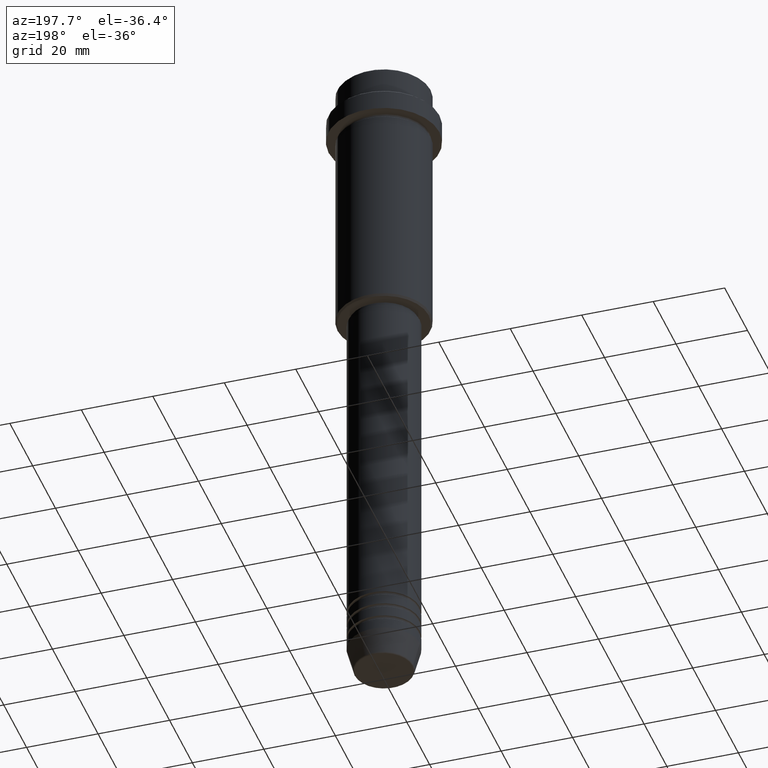
[diagram: clean part render]
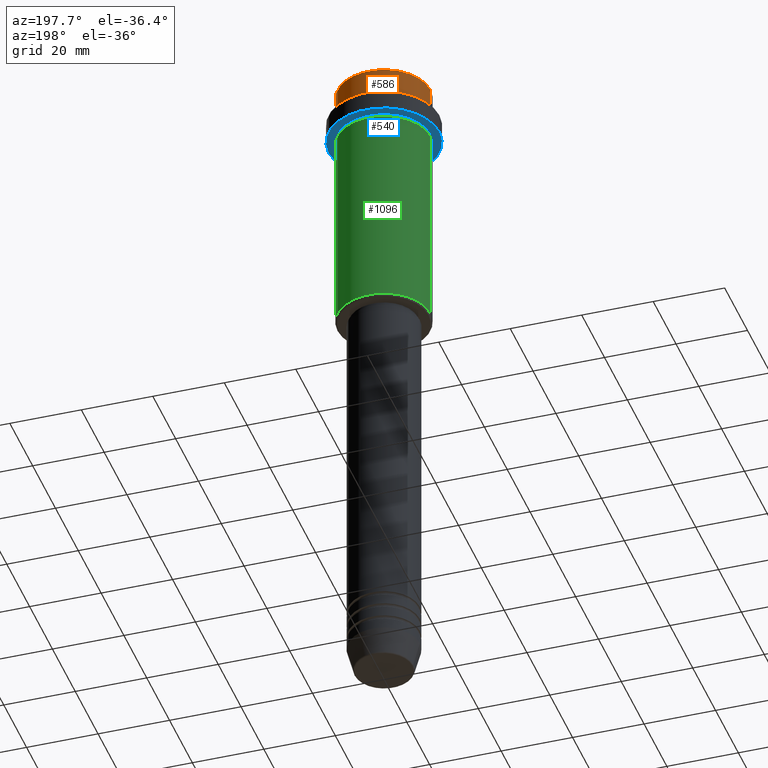
[diagram: same view with three faces highlighted in distinct colors, each labeled with its STEP entity id]
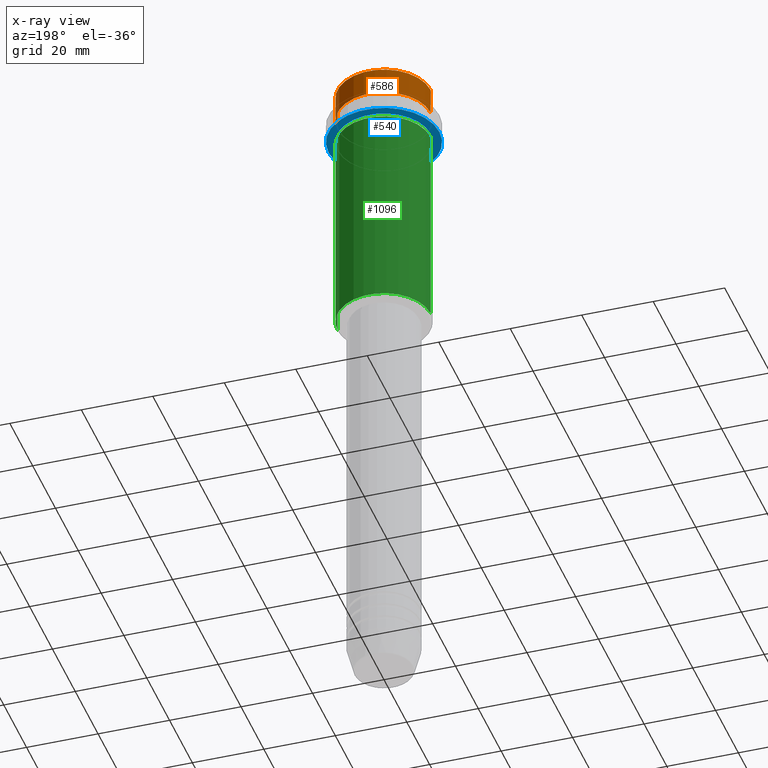
[diagram: x-ray of the same camera — body ghosted, the three highlighted faces saturated]
A machine part, auxiliary view with three faces highlighted in distinct colors.
The next image is the same camera in x-ray (body ghosted, the three faces saturated) — at least one of them is partly hidden behind the body in this view.
Their STEP definitions:

[orange] entity #586 — the highlighted cylindrical surface (partial cylindrical patch) has radius 13 mm, axis along (-0, -0, 1).
#5 = CYLINDRICAL_SURFACE ( 'NONE', #1361, 12.99999999999999822 ) ;
#7 = ORIENTED_EDGE ( 'NONE', *, *, #494, .T. ) ;
#40 = CARTESIAN_POINT ( 'NONE',  ( -12.99999999999999822, 1.592040838891558898E-15, -0.4999999999999761302 ) ) ;
#41 = CARTESIAN_POINT ( 'NONE',  ( 0.000000000000000000, 0.000000000000000000, -7.999999999999998224 ) ) ;
#74 = EDGE_CURVE ( 'NONE', #1091, #378, #710, .T. ) ;
#129 = CIRCLE ( 'NONE', #1316, 12.99999999999999822 ) ;
#149 = VECTOR ( 'NONE', #564, 1000.000000000000000 ) ;
#163 = DIRECTION ( 'NONE',  ( -0.000000000000000000, -0.000000000000000000, 1.000000000000000000 ) ) ;
#210 = DIRECTION ( 'NONE',  ( 1.000000000000000000, 0.000000000000000000, 0.000000000000000000 ) ) ;
#304 = LINE ( 'NONE', #632, #1384 ) ;
#327 = FACE_OUTER_BOUND ( 'NONE', #368, .T. ) ;
#368 = EDGE_LOOP ( 'NONE', ( #733, #1133, #7, #1370 ) ) ;
#378 = VERTEX_POINT ( 'NONE', #881 ) ;
#491 = DIRECTION ( 'NONE',  ( 1.000000000000000000, 0.000000000000000000, 0.000000000000000000 ) ) ;
#494 = EDGE_CURVE ( 'NONE', #875, #680, #129, .T. ) ;
#525 = DIRECTION ( 'NONE',  ( 0.000000000000000000, 0.000000000000000000, -1.000000000000000000 ) ) ;
#564 = DIRECTION ( 'NONE',  ( -0.000000000000000000, -0.000000000000000000, 1.000000000000000000 ) ) ;
#586 = ADVANCED_FACE ( 'NONE', ( #327 ), #5, .T. ) ;
#632 = CARTESIAN_POINT ( 'NONE',  ( -12.99999999999999822, 1.592040838891558898E-15, 0.000000000000000000 ) ) ;
#680 = VERTEX_POINT ( 'NONE', #956 ) ;
#710 = CIRCLE ( 'NONE', #892, 12.99999999999999822 ) ;
#733 = ORIENTED_EDGE ( 'NONE', *, *, #74, .T. ) ;
#756 = DIRECTION ( 'NONE',  ( 1.000000000000000000, 0.000000000000000000, 0.000000000000000000 ) ) ;
#782 = LINE ( 'NONE', #1219, #149 ) ;
#858 = CARTESIAN_POINT ( 'NONE',  ( 12.99999999999999822, 0.000000000000000000, -7.999999999999998224 ) ) ;
#875 = VERTEX_POINT ( 'NONE', #40 ) ;
#881 = CARTESIAN_POINT ( 'NONE',  ( -12.99999999999999822, 1.592040838891558898E-15, -7.999999999999998224 ) ) ;
#886 = DIRECTION ( 'NONE',  ( -0.000000000000000000, -0.000000000000000000, 1.000000000000000000 ) ) ;
#892 = AXIS2_PLACEMENT_3D ( 'NONE', #41, #163, #491 ) ;
#956 = CARTESIAN_POINT ( 'NONE',  ( 12.99999999999999822, 0.000000000000000000, -0.4999999999999761302 ) ) ;
#1068 = EDGE_CURVE ( 'NONE', #378, #875, #304, .T. ) ;
#1091 = VERTEX_POINT ( 'NONE', #858 ) ;
#1094 = CARTESIAN_POINT ( 'NONE',  ( 0.000000000000000000, 0.000000000000000000, -0.4999999999999761302 ) ) ;
#1133 = ORIENTED_EDGE ( 'NONE', *, *, #1068, .T. ) ;
#1198 = CARTESIAN_POINT ( 'NONE',  ( 0.000000000000000000, 0.000000000000000000, 0.000000000000000000 ) ) ;
#1219 = CARTESIAN_POINT ( 'NONE',  ( 12.99999999999999822, 0.000000000000000000, 0.000000000000000000 ) ) ;
#1260 = EDGE_CURVE ( 'NONE', #1091, #680, #782, .T. ) ;
#1316 = AXIS2_PLACEMENT_3D ( 'NONE', #1094, #525, #756 ) ;
#1361 = AXIS2_PLACEMENT_3D ( 'NONE', #1198, #886, #210 ) ;
#1370 = ORIENTED_EDGE ( 'NONE', *, *, #1260, .F. ) ;
#1384 = VECTOR ( 'NONE', #1392, 1000.000000000000000 ) ;
#1392 = DIRECTION ( 'NONE',  ( -0.000000000000000000, -0.000000000000000000, 1.000000000000000000 ) ) ;

[blue] entity #540 — the highlighted planar face has unit normal (0, 0, -1).
#36 = EDGE_CURVE ( 'NONE', #1210, #1222, #272, .T. ) ;
#115 = EDGE_CURVE ( 'NONE', #1323, #781, #508, .T. ) ;
#141 = EDGE_LOOP ( 'NONE', ( #1237, #762 ) ) ;
#220 = AXIS2_PLACEMENT_3D ( 'NONE', #1238, #936, #1151 ) ;
#241 = CARTESIAN_POINT ( 'NONE',  ( -15.50000000000000000, 1.898202538678397557E-15, -15.00000000000000178 ) ) ;
#272 = CIRCLE ( 'NONE', #967, 15.50000000000000000 ) ;
#273 = CARTESIAN_POINT ( 'NONE',  ( 12.99999999999999467, 1.592040838891558504E-15, -15.00000000000000000 ) ) ;
#276 = DIRECTION ( 'NONE',  ( -0.000000000000000000, -0.000000000000000000, 1.000000000000000000 ) ) ;
#309 = FACE_OUTER_BOUND ( 'NONE', #826, .T. ) ;
#330 = DIRECTION ( 'NONE',  ( -1.000000000000000000, 0.000000000000000000, -0.000000000000000000 ) ) ;
#359 = AXIS2_PLACEMENT_3D ( 'NONE', #738, #1175, #330 ) ;
#407 = FACE_BOUND ( 'NONE', #141, .T. ) ;
#460 = EDGE_CURVE ( 'NONE', #781, #1323, #575, .T. ) ;
#497 = ORIENTED_EDGE ( 'NONE', *, *, #36, .F. ) ;
#508 = CIRCLE ( 'NONE', #620, 12.99999999999999467 ) ;
#522 = ORIENTED_EDGE ( 'NONE', *, *, #1309, .F. ) ;
#524 = CARTESIAN_POINT ( 'NONE',  ( 0.000000000000000000, 0.000000000000000000, -15.00000000000000000 ) ) ;
#540 = ADVANCED_FACE ( 'NONE', ( #407, #309 ), #746, .T. ) ;
#567 = DIRECTION ( 'NONE',  ( -1.000000000000000000, 0.000000000000000000, 0.000000000000000000 ) ) ;
#575 = CIRCLE ( 'NONE', #1364, 12.99999999999999467 ) ;
#620 = AXIS2_PLACEMENT_3D ( 'NONE', #524, #799, #567 ) ;
#663 = CIRCLE ( 'NONE', #220, 15.50000000000000000 ) ;
#726 = CARTESIAN_POINT ( 'NONE',  ( 0.000000000000000000, 0.000000000000000000, -15.00000000000000178 ) ) ;
#738 = CARTESIAN_POINT ( 'NONE',  ( 0.000000000000000000, 15.50000000000000000, -15.00000000000000000 ) ) ;
#746 = PLANE ( 'NONE',  #359 ) ;
#761 = DIRECTION ( 'NONE',  ( -0.000000000000000000, -0.000000000000000000, 1.000000000000000000 ) ) ;
#762 = ORIENTED_EDGE ( 'NONE', *, *, #115, .T. ) ;
#781 = VERTEX_POINT ( 'NONE', #1019 ) ;
#799 = DIRECTION ( 'NONE',  ( -0.000000000000000000, -0.000000000000000000, 1.000000000000000000 ) ) ;
#826 = EDGE_LOOP ( 'NONE', ( #522, #497 ) ) ;
#936 = DIRECTION ( 'NONE',  ( -0.000000000000000000, -0.000000000000000000, 1.000000000000000000 ) ) ;
#967 = AXIS2_PLACEMENT_3D ( 'NONE', #726, #276, #1036 ) ;
#976 = CARTESIAN_POINT ( 'NONE',  ( 0.000000000000000000, 0.000000000000000000, -15.00000000000000000 ) ) ;
#1019 = CARTESIAN_POINT ( 'NONE',  ( -12.99999999999999467, 0.000000000000000000, -15.00000000000000000 ) ) ;
#1036 = DIRECTION ( 'NONE',  ( 1.000000000000000000, 0.000000000000000000, 0.000000000000000000 ) ) ;
#1112 = CARTESIAN_POINT ( 'NONE',  ( 15.50000000000000000, 0.000000000000000000, -15.00000000000000178 ) ) ;
#1151 = DIRECTION ( 'NONE',  ( 1.000000000000000000, 0.000000000000000000, 0.000000000000000000 ) ) ;
#1175 = DIRECTION ( 'NONE',  ( 0.000000000000000000, 0.000000000000000000, -1.000000000000000000 ) ) ;
#1210 = VERTEX_POINT ( 'NONE', #241 ) ;
#1222 = VERTEX_POINT ( 'NONE', #1112 ) ;
#1237 = ORIENTED_EDGE ( 'NONE', *, *, #460, .T. ) ;
#1238 = CARTESIAN_POINT ( 'NONE',  ( 0.000000000000000000, 0.000000000000000000, -15.00000000000000178 ) ) ;
#1282 = DIRECTION ( 'NONE',  ( -1.000000000000000000, 0.000000000000000000, 0.000000000000000000 ) ) ;
#1309 = EDGE_CURVE ( 'NONE', #1222, #1210, #663, .T. ) ;
#1323 = VERTEX_POINT ( 'NONE', #273 ) ;
#1364 = AXIS2_PLACEMENT_3D ( 'NONE', #976, #761, #1282 ) ;

[green] entity #1096 — the highlighted cylindrical surface (partial cylindrical patch) has radius 13 mm, axis along (-0, -0, 1).
#13 = AXIS2_PLACEMENT_3D ( 'NONE', #645, #755, #1067 ) ;
#125 = DIRECTION ( 'NONE',  ( 1.000000000000000000, 0.000000000000000000, 0.000000000000000000 ) ) ;
#138 = EDGE_CURVE ( 'NONE', #442, #1400, #246, .T. ) ;
#198 = CYLINDRICAL_SURFACE ( 'NONE', #13, 13.00000000000000000 ) ;
#228 = CARTESIAN_POINT ( 'NONE',  ( 0.000000000000000000, 0.000000000000000000, -16.00000000000000000 ) ) ;
#246 = CIRCLE ( 'NONE', #431, 13.00000000000000000 ) ;
#319 = FACE_OUTER_BOUND ( 'NONE', #1268, .T. ) ;
#375 = CARTESIAN_POINT ( 'NONE',  ( -13.00000000000000000, 1.592040838891559095E-15, -16.00000000000000000 ) ) ;
#386 = VECTOR ( 'NONE', #433, 1000.000000000000000 ) ;
#394 = ORIENTED_EDGE ( 'NONE', *, *, #1111, .T. ) ;
#431 = AXIS2_PLACEMENT_3D ( 'NONE', #693, #1010, #1337 ) ;
#433 = DIRECTION ( 'NONE',  ( -0.000000000000000000, -0.000000000000000000, 1.000000000000000000 ) ) ;
#442 = VERTEX_POINT ( 'NONE', #1085 ) ;
#532 = VECTOR ( 'NONE', #1284, 1000.000000000000000 ) ;
#545 = ORIENTED_EDGE ( 'NONE', *, *, #1018, .F. ) ;
#645 = CARTESIAN_POINT ( 'NONE',  ( 0.000000000000000000, 0.000000000000000000, 0.000000000000000000 ) ) ;
#693 = CARTESIAN_POINT ( 'NONE',  ( 0.000000000000000000, 0.000000000000000000, -74.50000000000001421 ) ) ;
#721 = EDGE_CURVE ( 'NONE', #1259, #923, #1078, .T. ) ;
#755 = DIRECTION ( 'NONE',  ( -0.000000000000000000, -0.000000000000000000, 1.000000000000000000 ) ) ;
#904 = CARTESIAN_POINT ( 'NONE',  ( 13.00000000000000000, 0.000000000000000000, -16.00000000000000000 ) ) ;
#923 = VERTEX_POINT ( 'NONE', #375 ) ;
#947 = ORIENTED_EDGE ( 'NONE', *, *, #721, .F. ) ;
#981 = LINE ( 'NONE', #1403, #386 ) ;
#1010 = DIRECTION ( 'NONE',  ( -0.000000000000000000, -0.000000000000000000, 1.000000000000000000 ) ) ;
#1018 = EDGE_CURVE ( 'NONE', #442, #1259, #1387, .T. ) ;
#1032 = AXIS2_PLACEMENT_3D ( 'NONE', #228, #1114, #125 ) ;
#1040 = CARTESIAN_POINT ( 'NONE',  ( -13.00000000000000000, 1.592040838891559095E-15, -74.50000000000001421 ) ) ;
#1067 = DIRECTION ( 'NONE',  ( 1.000000000000000000, 0.000000000000000000, 0.000000000000000000 ) ) ;
#1069 = ORIENTED_EDGE ( 'NONE', *, *, #138, .T. ) ;
#1078 = CIRCLE ( 'NONE', #1032, 13.00000000000000000 ) ;
#1085 = CARTESIAN_POINT ( 'NONE',  ( 13.00000000000000000, 0.000000000000000000, -74.50000000000001421 ) ) ;
#1096 = ADVANCED_FACE ( 'NONE', ( #319 ), #198, .T. ) ;
#1111 = EDGE_CURVE ( 'NONE', #1400, #923, #981, .T. ) ;
#1114 = DIRECTION ( 'NONE',  ( -0.000000000000000000, -0.000000000000000000, 1.000000000000000000 ) ) ;
#1259 = VERTEX_POINT ( 'NONE', #904 ) ;
#1268 = EDGE_LOOP ( 'NONE', ( #1069, #394, #947, #545 ) ) ;
#1284 = DIRECTION ( 'NONE',  ( -0.000000000000000000, -0.000000000000000000, 1.000000000000000000 ) ) ;
#1295 = CARTESIAN_POINT ( 'NONE',  ( 13.00000000000000000, 0.000000000000000000, 0.000000000000000000 ) ) ;
#1337 = DIRECTION ( 'NONE',  ( -1.000000000000000000, 0.000000000000000000, 0.000000000000000000 ) ) ;
#1387 = LINE ( 'NONE', #1295, #532 ) ;
#1400 = VERTEX_POINT ( 'NONE', #1040 ) ;
#1403 = CARTESIAN_POINT ( 'NONE',  ( -13.00000000000000000, 1.592040838891559095E-15, 0.000000000000000000 ) ) ;